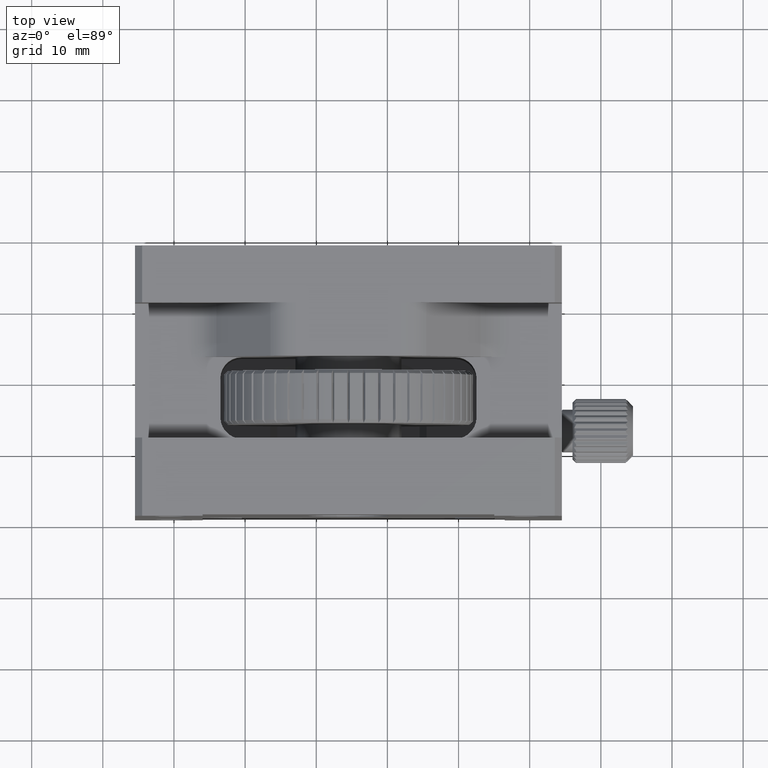
[diagram: clean part render]
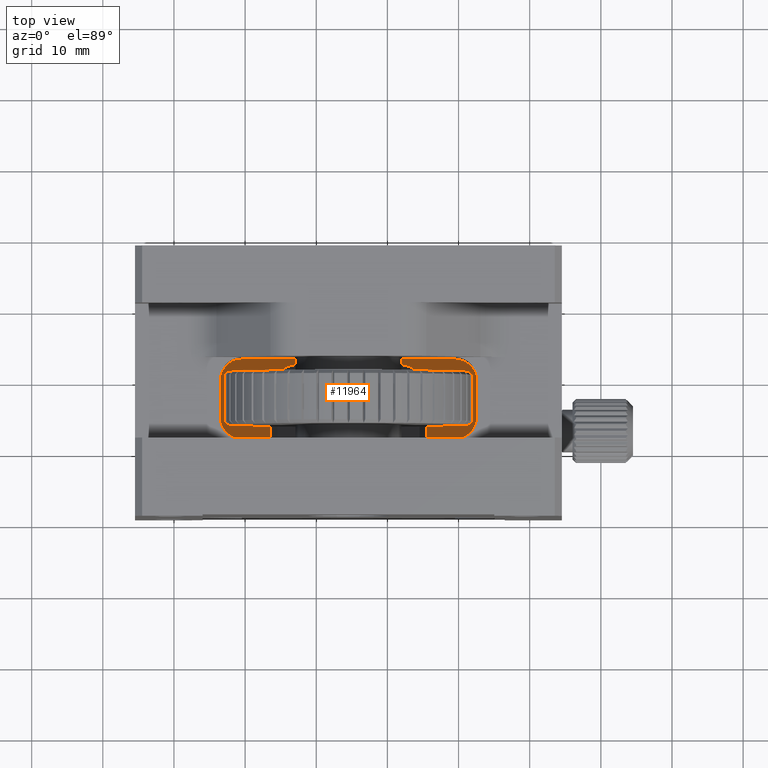
[diagram: same view with one face highlighted and labeled with its STEP entity id]
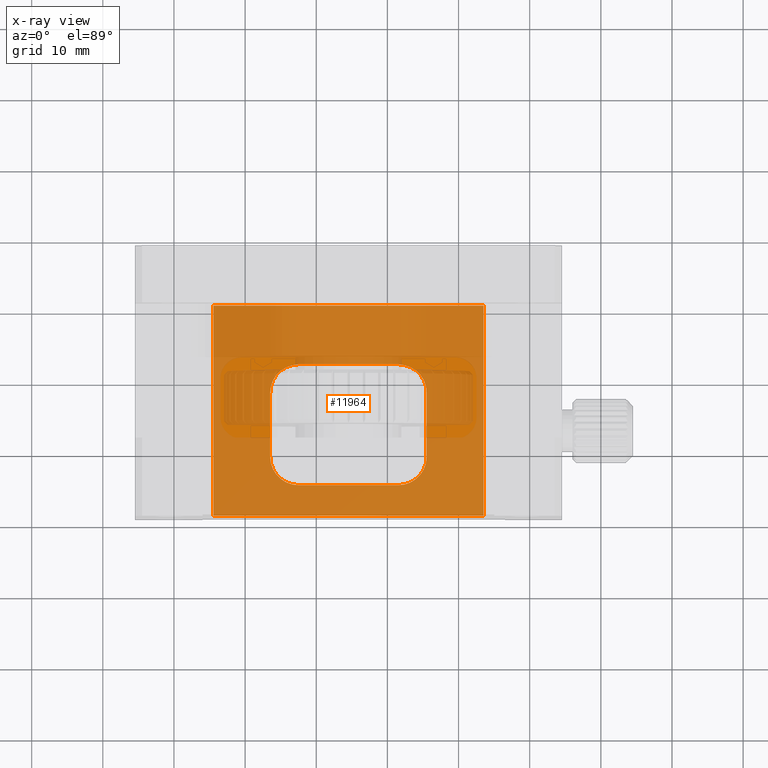
[diagram: x-ray of the same camera — body ghosted, the highlighted face saturated]
A machine part, top view. The second image highlights one B-rep face of the part: STEP entity #11964.
The next image is the same camera in x-ray: the body ghosted, the highlighted face saturated — about 92% of this face is hidden behind the body in this view.
In plain terms, the highlighted planar face has unit normal (-0, 0, -1).
Its self-contained STEP definition (entity closure, byte-faithful):
#76 = CIRCLE ( 'NONE', #3098, 4.000000000019095836 ) ;
#165 = VERTEX_POINT ( 'NONE', #17832 ) ;
#520 = CARTESIAN_POINT ( 'NONE',  ( 45.52212796203350109, 40.59151725221547480, 68.80549511013728647 ) ) ;
#536 = VECTOR ( 'NONE', #26644, 1000.000000000000000 ) ;
#1521 = CARTESIAN_POINT ( 'NONE',  ( 53.52212796203347267, 40.59151725221547480, 68.80549511013722963 ) ) ;
#1545 = ORIENTED_EDGE ( 'NONE', *, *, #1915, .F. ) ;
#1554 = DIRECTION ( 'NONE',  ( 6.982962677686266711E-15, 0.000000000000000000, 1.000000000000000000 ) ) ;
#1562 = DIRECTION ( 'NONE',  ( 1.000000000000000000, -0.000000000000000000, -6.982962677686266711E-15 ) ) ;
#1608 = DIRECTION ( 'NONE',  ( 1.000000000000000000, 0.000000000000000000, -6.938893903874096220E-15 ) ) ;
#1781 = CARTESIAN_POINT ( 'NONE',  ( 45.52212796204303658, 19.34151725221547480, 68.80549511014774566 ) ) ;
#1915 = EDGE_CURVE ( 'NONE', #165, #10398, #6085, .T. ) ;
#2117 = CARTESIAN_POINT ( 'NONE',  ( 15.52212796203354017, 40.59151725221547480, 68.80549511013747122 ) ) ;
#2314 = VECTOR ( 'NONE', #1562, 1000.000000000000000 ) ;
#2605 = CARTESIAN_POINT ( 'NONE',  ( 27.52212796203347267, 32.34151725222729823, 68.80549511010886476 ) ) ;
#3098 = AXIS2_PLACEMENT_3D ( 'NONE', #20039, #21937, #18129 ) ;
#3344 = CIRCLE ( 'NONE', #3784, 4.000000000019099389 ) ;
#3784 = AXIS2_PLACEMENT_3D ( 'NONE', #6291, #1554, #24369 ) ;
#4214 = LINE ( 'NONE', #8526, #17480 ) ;
#4796 = CARTESIAN_POINT ( 'NONE',  ( 41.52212796203347978, 15.34151725220454132, 68.80549511014640984 ) ) ;
#5415 = EDGE_CURVE ( 'NONE', #14619, #17651, #76, .T. ) ;
#5527 = ORIENTED_EDGE ( 'NONE', *, *, #5415, .F. ) ;
#5687 = VERTEX_POINT ( 'NONE', #18945 ) ;
#5715 = DIRECTION ( 'NONE',  ( -6.982962677686266711E-15, 0.000000000000000000, -1.000000000000000000 ) ) ;
#5990 = EDGE_CURVE ( 'NONE', #24566, #6349, #20008, .T. ) ;
#6085 = CIRCLE ( 'NONE', #11657, 3.999999999962259523 ) ;
#6153 = CARTESIAN_POINT ( 'NONE',  ( 53.52212796203347267, 40.59151725221547480, 68.80549511013722963 ) ) ;
#6188 = DIRECTION ( 'NONE',  ( 6.982962677686266711E-15, 0.000000000000000000, 1.000000000000000000 ) ) ;
#6218 = CARTESIAN_POINT ( 'NONE',  ( 45.52212796203484402, 28.34151725221547480, 68.80549511016057807 ) ) ;
#6291 = CARTESIAN_POINT ( 'NONE',  ( 41.52212796203347267, 28.34151725221547480, 68.80549511014777408 ) ) ;
#6349 = VERTEX_POINT ( 'NONE', #23606 ) ;
#6470 = ORIENTED_EDGE ( 'NONE', *, *, #21994, .F. ) ;
#7349 = ORIENTED_EDGE ( 'NONE', *, *, #22028, .F. ) ;
#7715 = CARTESIAN_POINT ( 'NONE',  ( 27.52212796203346912, 15.34151725226206509, 68.80549511009078856 ) ) ;
#7902 = EDGE_CURVE ( 'NONE', #25146, #11255, #19127, .T. ) ;
#8003 = AXIS2_PLACEMENT_3D ( 'NONE', #22391, #24147, #1608 ) ;
#8039 = VERTEX_POINT ( 'NONE', #18991 ) ;
#8526 = CARTESIAN_POINT ( 'NONE',  ( 15.02212796203347267, 15.34151725221544993, 68.80549511013748543 ) ) ;
#9018 = CARTESIAN_POINT ( 'NONE',  ( 15.02212796203347267, 32.34151725221548901, 68.80549511013748543 ) ) ;
#9637 = EDGE_CURVE ( 'NONE', #23447, #25146, #21778, .T. ) ;
#9889 = CARTESIAN_POINT ( 'NONE',  ( 15.02212796203347267, 40.59151725221547480, 68.80549511013748543 ) ) ;
#10398 = VERTEX_POINT ( 'NONE', #7715 ) ;
#10552 = EDGE_CURVE ( 'NONE', #10398, #23447, #4214, .T. ) ;
#10626 = DIRECTION ( 'NONE',  ( 1.000000000000000000, 0.000000000000000000, -6.938893903972697522E-15 ) ) ;
#10841 = EDGE_LOOP ( 'NONE', ( #6470, #11637, #21398, #17667 ) ) ;
#10999 = VECTOR ( 'NONE', #26697, 1000.000000000000000 ) ;
#11173 = DIRECTION ( 'NONE',  ( 0.000000000000000000, 1.000000000000000000, 0.000000000000000000 ) ) ;
#11255 = VERTEX_POINT ( 'NONE', #6218 ) ;
#11637 = ORIENTED_EDGE ( 'NONE', *, *, #23224, .T. ) ;
#11657 = AXIS2_PLACEMENT_3D ( 'NONE', #12373, #6188, #10626 ) ;
#11815 = CARTESIAN_POINT ( 'NONE',  ( 34.52212796203347267, 40.59151725221547480, 68.80549511013735753 ) ) ;
#11964 = ADVANCED_FACE ( 'NONE', ( #26504, #15557 ), #24334, .F. ) ;
#12074 = ORIENTED_EDGE ( 'NONE', *, *, #16143, .F. ) ;
#12373 = CARTESIAN_POINT ( 'NONE',  ( 27.52212796203346912, 19.34151725221547480, 68.80549511004417695 ) ) ;
#12643 = EDGE_CURVE ( 'NONE', #11255, #18472, #3344, .T. ) ;
#13166 = DIRECTION ( 'NONE',  ( -1.000000000000000000, 0.000000000000000000, 6.982962677686266711E-15 ) ) ;
#13253 = CARTESIAN_POINT ( 'NONE',  ( 23.52212796203345135, 40.59151725221547480, 68.80549511013741437 ) ) ;
#13586 = ORIENTED_EDGE ( 'NONE', *, *, #9637, .F. ) ;
#14271 = VECTOR ( 'NONE', #19853, 1000.000000000000000 ) ;
#14619 = VERTEX_POINT ( 'NONE', #2605 ) ;
#14628 = DIRECTION ( 'NONE',  ( 1.000000000000000000, -0.000000000000000000, -6.982962677686266711E-15 ) ) ;
#15389 = AXIS2_PLACEMENT_3D ( 'NONE', #9889, #5715, #18094 ) ;
#15501 = ORIENTED_EDGE ( 'NONE', *, *, #10552, .F. ) ;
#15557 = FACE_BOUND ( 'NONE', #21494, .T. ) ;
#16143 = EDGE_CURVE ( 'NONE', #17651, #165, #24052, .T. ) ;
#17023 = VECTOR ( 'NONE', #13166, 1000.000000000000000 ) ;
#17480 = VECTOR ( 'NONE', #25122, 1000.000000000000000 ) ;
#17651 = VERTEX_POINT ( 'NONE', #18455 ) ;
#17667 = ORIENTED_EDGE ( 'NONE', *, *, #20105, .F. ) ;
#17832 = CARTESIAN_POINT ( 'NONE',  ( 23.52212796207473744, 19.34151725221547480, 68.80549511008047148 ) ) ;
#18094 = DIRECTION ( 'NONE',  ( -1.000000000000000000, 0.000000000000000000, 6.982962677686266711E-15 ) ) ;
#18129 = DIRECTION ( 'NONE',  ( 1.000000000000000000, 0.000000000000000000, -6.938893903874102531E-15 ) ) ;
#18258 = LINE ( 'NONE', #24770, #20914 ) ;
#18432 = LINE ( 'NONE', #2117, #10999 ) ;
#18455 = CARTESIAN_POINT ( 'NONE',  ( 23.52212796205164480, 28.34151725221547480, 68.80549511011923869 ) ) ;
#18472 = VERTEX_POINT ( 'NONE', #19891 ) ;
#18945 = CARTESIAN_POINT ( 'NONE',  ( 15.52212796203354017, 40.59151725221547480, 68.80549511013747122 ) ) ;
#18991 = CARTESIAN_POINT ( 'NONE',  ( 15.52212796203352596, 11.09151725221546769, 68.80549511013747122 ) ) ;
#19127 = LINE ( 'NONE', #520, #25575 ) ;
#19853 = DIRECTION ( 'NONE',  ( -0.000000000000000000, -1.000000000000000000, -0.000000000000000000 ) ) ;
#19891 = CARTESIAN_POINT ( 'NONE',  ( 41.52212796203347267, 32.34151725222072571, 68.80549511014253028 ) ) ;
#20008 = LINE ( 'NONE', #1521, #536 ) ;
#20039 = CARTESIAN_POINT ( 'NONE',  ( 27.52212796203346912, 28.34151725221547480, 68.80549511010102037 ) ) ;
#20105 = EDGE_CURVE ( 'NONE', #5687, #24566, #22081, .T. ) ;
#20914 = VECTOR ( 'NONE', #14628, 1000.000000000000000 ) ;
#21398 = ORIENTED_EDGE ( 'NONE', *, *, #5990, .F. ) ;
#21494 = EDGE_LOOP ( 'NONE', ( #15501, #1545, #12074, #5527, #7349, #26317, #23815, #13586 ) ) ;
#21778 = CIRCLE ( 'NONE', #8003, 4.000000000019099389 ) ;
#21937 = DIRECTION ( 'NONE',  ( 6.982962677686266711E-15, 0.000000000000000000, 1.000000000000000000 ) ) ;
#21994 = EDGE_CURVE ( 'NONE', #8039, #5687, #18432, .T. ) ;
#22028 = EDGE_CURVE ( 'NONE', #18472, #14619, #23296, .T. ) ;
#22081 = LINE ( 'NONE', #11815, #2314 ) ;
#22391 = CARTESIAN_POINT ( 'NONE',  ( 41.52212796203347978, 19.34151725221547480, 68.80549511014777408 ) ) ;
#23224 = EDGE_CURVE ( 'NONE', #8039, #6349, #18258, .T. ) ;
#23296 = LINE ( 'NONE', #9018, #17023 ) ;
#23447 = VERTEX_POINT ( 'NONE', #4796 ) ;
#23606 = CARTESIAN_POINT ( 'NONE',  ( 53.52212796203347267, 11.09151725221546769, 68.80549511013722963 ) ) ;
#23815 = ORIENTED_EDGE ( 'NONE', *, *, #7902, .F. ) ;
#24052 = LINE ( 'NONE', #13253, #14271 ) ;
#24147 = DIRECTION ( 'NONE',  ( 6.982962677686266711E-15, 0.000000000000000000, 1.000000000000000000 ) ) ;
#24334 = PLANE ( 'NONE',  #15389 ) ;
#24369 = DIRECTION ( 'NONE',  ( 1.000000000000000000, 0.000000000000000000, -6.938893903874096220E-15 ) ) ;
#24566 = VERTEX_POINT ( 'NONE', #6153 ) ;
#24770 = CARTESIAN_POINT ( 'NONE',  ( 34.52212796203347267, 11.09151725221546769, 68.80549511013735753 ) ) ;
#25122 = DIRECTION ( 'NONE',  ( 1.000000000000000000, -0.000000000000000000, -6.982962677686266711E-15 ) ) ;
#25146 = VERTEX_POINT ( 'NONE', #1781 ) ;
#25575 = VECTOR ( 'NONE', #11173, 1000.000000000000000 ) ;
#26317 = ORIENTED_EDGE ( 'NONE', *, *, #12643, .F. ) ;
#26504 = FACE_OUTER_BOUND ( 'NONE', #10841, .T. ) ;
#26644 = DIRECTION ( 'NONE',  ( -0.000000000000000000, -1.000000000000000000, -0.000000000000000000 ) ) ;
#26697 = DIRECTION ( 'NONE',  ( 0.000000000000000000, 1.000000000000000000, 0.000000000000000000 ) ) ;